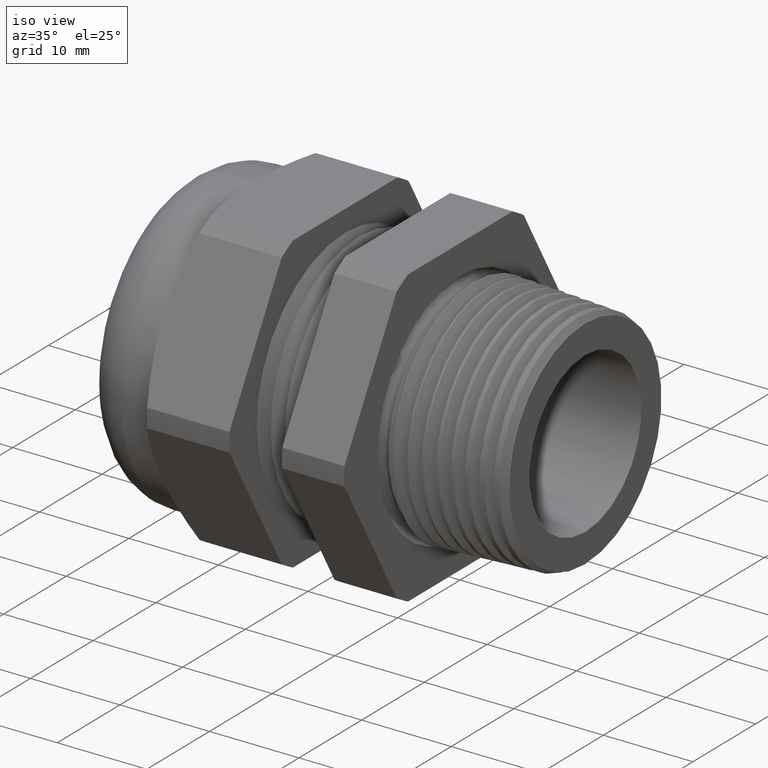
[diagram: clean part render]
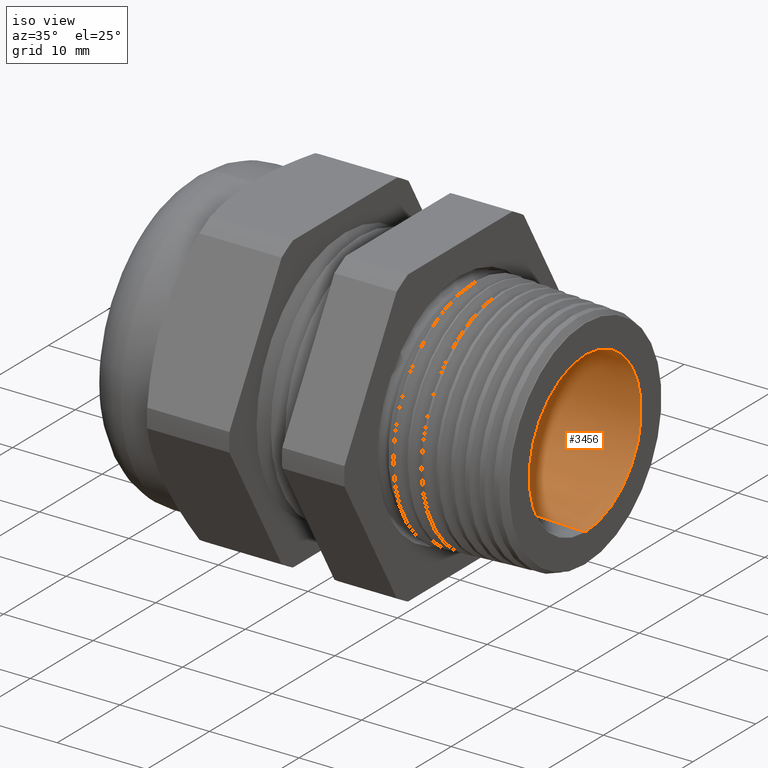
[diagram: same view with one face highlighted and labeled with its STEP entity id]
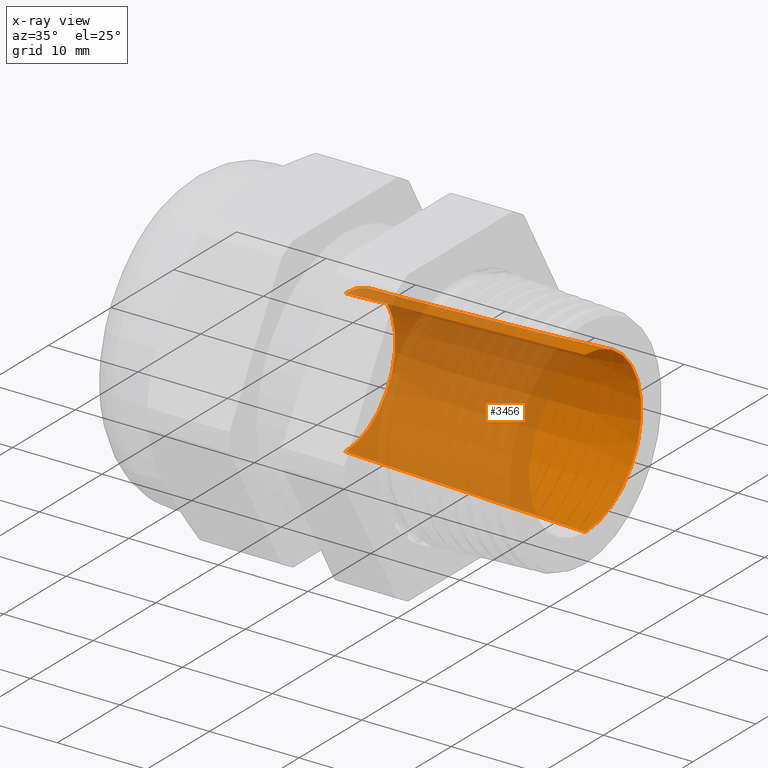
[diagram: x-ray of the same camera — body ghosted, the highlighted face saturated]
A machine part, iso view. The second image highlights one B-rep face of the part: STEP entity #3456.
The next image is the same camera in x-ray: the body ghosted, the highlighted face saturated — about 64% of this face is hidden behind the body in this view.
In plain terms, the highlighted conical surface has half-angle 2 deg.
Its self-contained STEP definition (entity closure, byte-faithful):
#152 = VERTEX_POINT ( 'NONE', #1229 ) ;
#153 = EDGE_CURVE ( 'NONE', #160, #156, #1228, .T. ) ;
#156 = VERTEX_POINT ( 'NONE', #1213 ) ;
#157 = EDGE_CURVE ( 'NONE', #159, #152, #1212, .T. ) ;
#159 = VERTEX_POINT ( 'NONE', #1266 ) ;
#160 = VERTEX_POINT ( 'NONE', #1265 ) ;
#1209 = DIRECTION ( 'NONE',  ( 0.9993908270190957600, 0.0000000000000000000, -0.03489949670250171200 ) ) ;
#1210 = VECTOR ( 'NONE', #1209, 39.37007874015748900 ) ;
#1211 = CARTESIAN_POINT ( 'NONE',  ( -0.5058333333333334700, 0.0000000000000000000, -0.3150000000000000000 ) ) ;
#1212 = LINE ( 'NONE', #1211, #1210 ) ;
#1213 = CARTESIAN_POINT ( 'NONE',  ( 0.5500000000000001600, 4.309170967924009200E-017, 0.3518705124550377500 ) ) ;
#1225 = DIRECTION ( 'NONE',  ( 0.9993908270190957600, 4.273955692857232700E-018, 0.03489949670250171200 ) ) ;
#1226 = VECTOR ( 'NONE', #1225, 39.37007874015748900 ) ;
#1227 = CARTESIAN_POINT ( 'NONE',  ( -0.5058333333333334700, 3.857637417314162700E-017, 0.3150000000000000000 ) ) ;
#1228 = LINE ( 'NONE', #1227, #1226 ) ;
#1229 = CARTESIAN_POINT ( 'NONE',  ( 0.5500000000000001600, 0.0000000000000000000, -0.3518705124550377500 ) ) ;
#1265 = CARTESIAN_POINT ( 'NONE',  ( -0.5058333333333334700, 0.0000000000000000000, 0.3150000000000000000 ) ) ;
#1266 = CARTESIAN_POINT ( 'NONE',  ( -0.5058333333333334700, 3.857637417314162700E-017, -0.3150000000000000000 ) ) ;
#2703 = DIRECTION ( 'NONE',  ( 0.0000000000000000000, 0.0000000000000000000, 1.000000000000000000 ) ) ;
#2704 = DIRECTION ( 'NONE',  ( -1.000000000000000000, 0.0000000000000000000, 0.0000000000000000000 ) ) ;
#2705 = CARTESIAN_POINT ( 'NONE',  ( -0.5058333333333334700, 0.0000000000000000000, 0.0000000000000000000 ) ) ;
#2706 = AXIS2_PLACEMENT_3D ( 'NONE', #2705, #2704, #2703 ) ;
#2707 = CIRCLE ( 'NONE', #2706, 0.3150000000000000000 ) ;
#2783 = DIRECTION ( 'NONE',  ( 0.0000000000000000000, 0.0000000000000000000, -1.000000000000000000 ) ) ;
#2784 = DIRECTION ( 'NONE',  ( 1.000000000000000000, 0.0000000000000000000, 0.0000000000000000000 ) ) ;
#2785 = CARTESIAN_POINT ( 'NONE',  ( -0.5058333333333334700, 0.0000000000000000000, 0.0000000000000000000 ) ) ;
#2786 = AXIS2_PLACEMENT_3D ( 'NONE', #2785, #2784, #2783 ) ;
#2788 = CONICAL_SURFACE ( 'NONE', #2786, 0.3150000000000000000, 0.03490658503988733300 ) ;
#2789 = FACE_OUTER_BOUND ( 'NONE', #3737, .T. ) ;
#3202 = DIRECTION ( 'NONE',  ( 0.0000000000000000000, 0.0000000000000000000, 1.000000000000000000 ) ) ;
#3203 = DIRECTION ( 'NONE',  ( -1.000000000000000000, 0.0000000000000000000, 0.0000000000000000000 ) ) ;
#3204 = CARTESIAN_POINT ( 'NONE',  ( 0.5500000000000001600, 0.0000000000000000000, 0.0000000000000000000 ) ) ;
#3205 = AXIS2_PLACEMENT_3D ( 'NONE', #3204, #3203, #3202 ) ;
#3206 = CIRCLE ( 'NONE', #3205, 0.3518705124550377500 ) ;
#3411 = EDGE_CURVE ( 'NONE', #160, #159, #2707, .T. ) ;
#3456 = ADVANCED_FACE ( 'NONE', ( #2789 ), #2788, .F. ) ;
#3724 = ORIENTED_EDGE ( 'NONE', *, *, #3725, .F. ) ;
#3725 = EDGE_CURVE ( 'NONE', #156, #152, #3206, .T. ) ;
#3728 = ORIENTED_EDGE ( 'NONE', *, *, #157, .T. ) ;
#3735 = ORIENTED_EDGE ( 'NONE', *, *, #153, .F. ) ;
#3736 = ORIENTED_EDGE ( 'NONE', *, *, #3411, .T. ) ;
#3737 = EDGE_LOOP ( 'NONE', ( #3735, #3736, #3728, #3724 ) ) ;